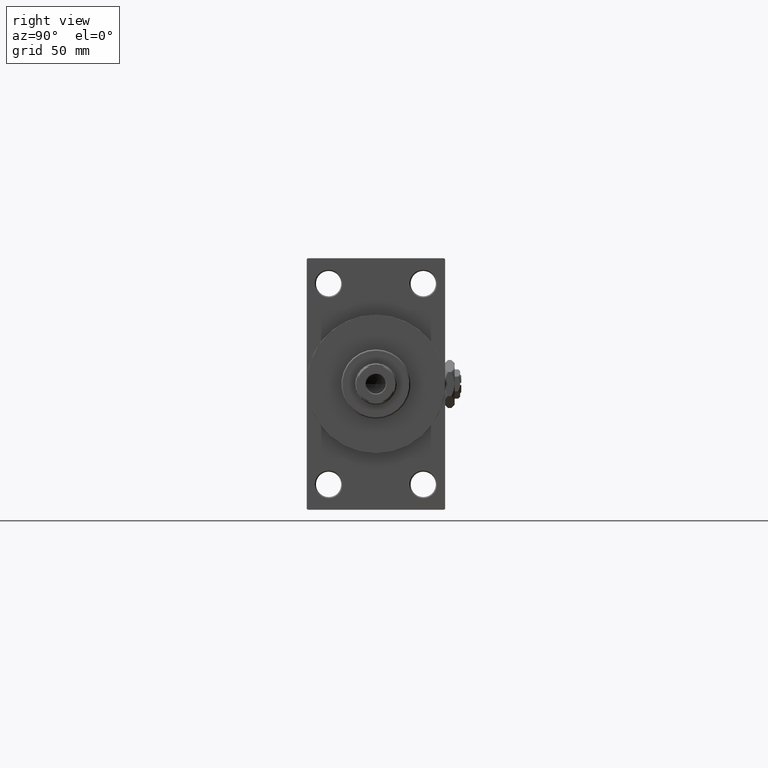
[diagram: clean part render]
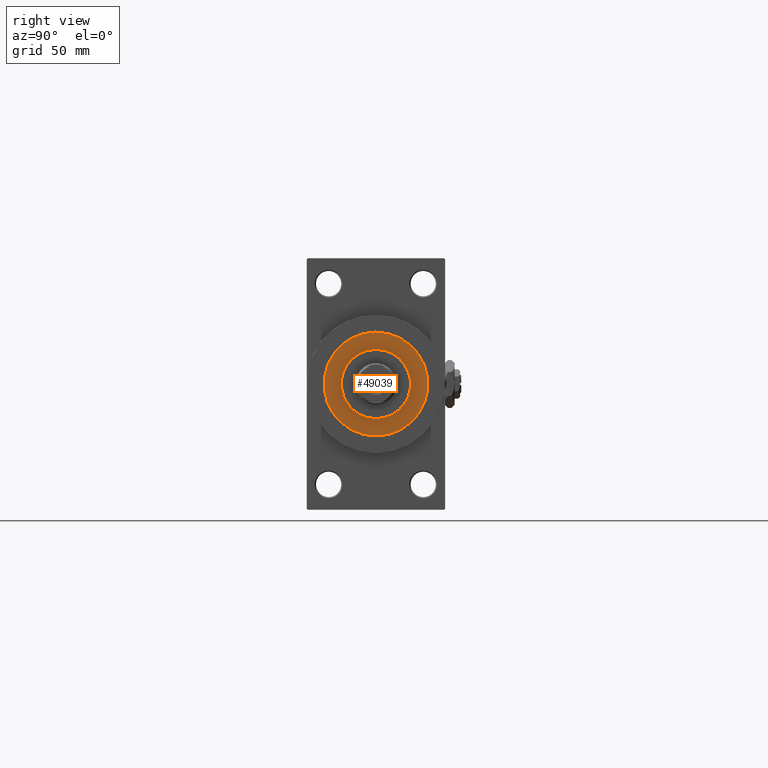
[diagram: same view with one face highlighted and labeled with its STEP entity id]
A machine part, right view. The second image highlights one B-rep face of the part: STEP entity #49039.
In plain terms, the highlighted planar face has unit normal (1, -0, -0).
Its self-contained STEP definition (entity closure, byte-faithful):
#110 = CIRCLE ( 'NONE', #22419, 15.00000000000000000 ) ;
#139 = DIRECTION ( 'NONE',  ( 0.000000000000000000, 0.000000000000000000, 1.000000000000000000 ) ) ;
#703 = EDGE_CURVE ( 'NONE', #35606, #34226, #110, .T. ) ;
#818 = VERTEX_POINT ( 'NONE', #29929 ) ;
#1291 = CIRCLE ( 'NONE', #19580, 15.00000000000000000 ) ;
#1773 = CARTESIAN_POINT ( 'NONE',  ( 0.000000000000000000, 0.000000000000000000, 43.25999999999999801 ) ) ;
#3450 = AXIS2_PLACEMENT_3D ( 'NONE', #1773, #24955, #16975 ) ;
#3639 = PLANE ( 'NONE',  #7029 ) ;
#4907 = VERTEX_POINT ( 'NONE', #10798 ) ;
#6157 = ORIENTED_EDGE ( 'NONE', *, *, #8731, .T. ) ;
#7029 = AXIS2_PLACEMENT_3D ( 'NONE', #33809, #139, #26319 ) ;
#8731 = EDGE_CURVE ( 'NONE', #4907, #818, #24926, .T. ) ;
#9439 = EDGE_CURVE ( 'NONE', #818, #4907, #20202, .T. ) ;
#9991 = CARTESIAN_POINT ( 'NONE',  ( 0.000000000000000000, 0.000000000000000000, 43.25999999999999801 ) ) ;
#10240 = ORIENTED_EDGE ( 'NONE', *, *, #20093, .F. ) ;
#10798 = CARTESIAN_POINT ( 'NONE',  ( 22.50000000000000355, 2.755455298081545172E-15, 43.25999999999999801 ) ) ;
#13468 = DIRECTION ( 'NONE',  ( 0.000000000000000000, 0.000000000000000000, 1.000000000000000000 ) ) ;
#15393 = AXIS2_PLACEMENT_3D ( 'NONE', #35568, #31839, #47039 ) ;
#16975 = DIRECTION ( 'NONE',  ( 1.000000000000000000, 0.000000000000000000, 0.000000000000000000 ) ) ;
#17947 = DIRECTION ( 'NONE',  ( 0.000000000000000000, 0.000000000000000000, 1.000000000000000000 ) ) ;
#19580 = AXIS2_PLACEMENT_3D ( 'NONE', #40395, #13468, #28679 ) ;
#20093 = EDGE_CURVE ( 'NONE', #34226, #35606, #1291, .T. ) ;
#20202 = CIRCLE ( 'NONE', #15393, 22.50000000000000355 ) ;
#22419 = AXIS2_PLACEMENT_3D ( 'NONE', #9991, #17947, #36149 ) ;
#22447 = EDGE_LOOP ( 'NONE', ( #34395, #10240 ) ) ;
#24926 = CIRCLE ( 'NONE', #3450, 22.50000000000000355 ) ;
#24955 = DIRECTION ( 'NONE',  ( 0.000000000000000000, 0.000000000000000000, 1.000000000000000000 ) ) ;
#25909 = ORIENTED_EDGE ( 'NONE', *, *, #9439, .T. ) ;
#26319 = DIRECTION ( 'NONE',  ( 1.000000000000000000, 0.000000000000000000, -0.000000000000000000 ) ) ;
#26566 = FACE_BOUND ( 'NONE', #22447, .T. ) ;
#28679 = DIRECTION ( 'NONE',  ( 1.000000000000000000, 0.000000000000000000, 0.000000000000000000 ) ) ;
#29413 = CARTESIAN_POINT ( 'NONE',  ( 15.00000000000000000, 1.836970198721029589E-15, 43.25999999999999801 ) ) ;
#29929 = CARTESIAN_POINT ( 'NONE',  ( -22.50000000000000355, 0.000000000000000000, 43.25999999999999801 ) ) ;
#30072 = FACE_OUTER_BOUND ( 'NONE', #45666, .T. ) ;
#31839 = DIRECTION ( 'NONE',  ( 0.000000000000000000, 0.000000000000000000, 1.000000000000000000 ) ) ;
#33809 = CARTESIAN_POINT ( 'NONE',  ( 0.000000000000000000, 0.000000000000000000, 43.25999999999999801 ) ) ;
#34226 = VERTEX_POINT ( 'NONE', #29413 ) ;
#34395 = ORIENTED_EDGE ( 'NONE', *, *, #703, .F. ) ;
#35568 = CARTESIAN_POINT ( 'NONE',  ( 0.000000000000000000, 0.000000000000000000, 43.25999999999999801 ) ) ;
#35606 = VERTEX_POINT ( 'NONE', #45201 ) ;
#36149 = DIRECTION ( 'NONE',  ( 1.000000000000000000, 0.000000000000000000, 0.000000000000000000 ) ) ;
#40395 = CARTESIAN_POINT ( 'NONE',  ( 0.000000000000000000, 0.000000000000000000, 43.25999999999999801 ) ) ;
#45201 = CARTESIAN_POINT ( 'NONE',  ( -15.00000000000000000, 0.000000000000000000, 43.25999999999999801 ) ) ;
#45666 = EDGE_LOOP ( 'NONE', ( #25909, #6157 ) ) ;
#47039 = DIRECTION ( 'NONE',  ( 1.000000000000000000, 0.000000000000000000, 0.000000000000000000 ) ) ;
#49039 = ADVANCED_FACE ( 'NONE', ( #26566, #30072 ), #3639, .T. ) ;